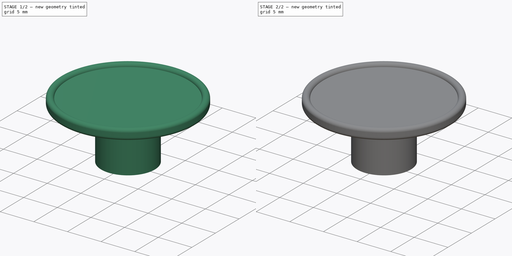
[diagram: build sequence overview — one tinted view per stage of 2, left to right]
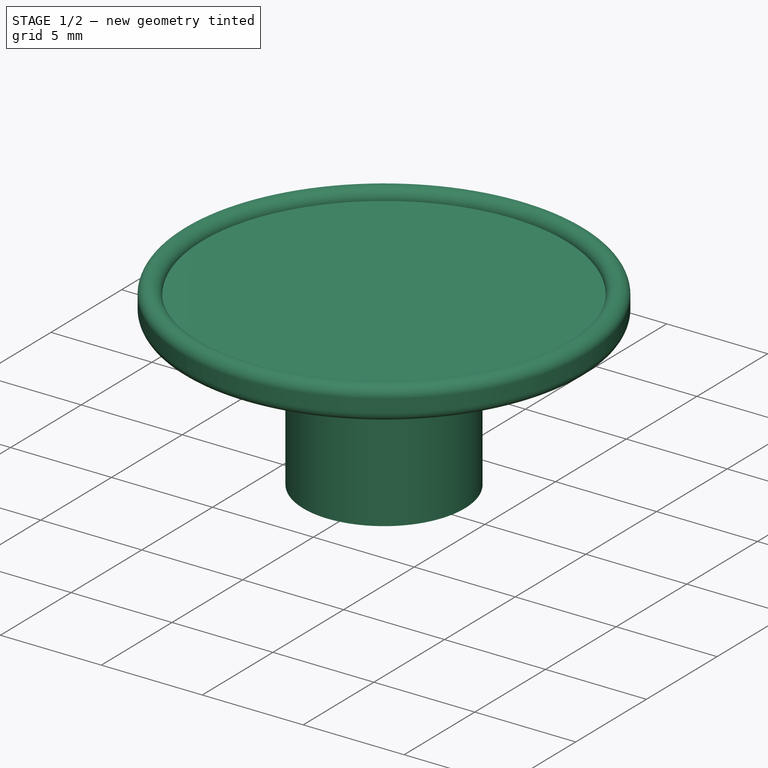
[diagram: stage 1 of 2 — iso view after this stage's code; geometry added in this stage tinted green]
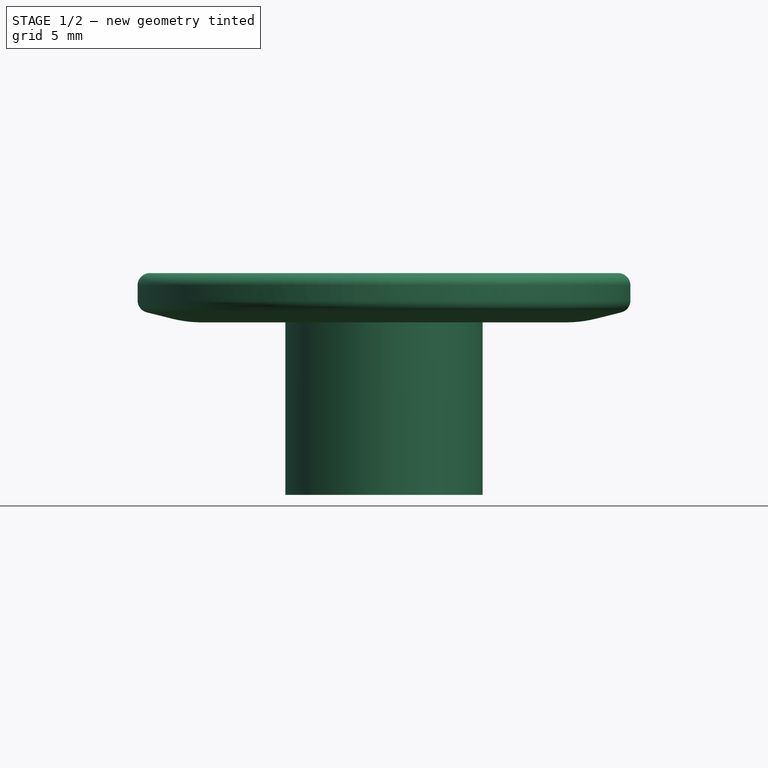
[diagram: stage 1 of 2 — front view after this stage's code; geometry added in this stage tinted green]
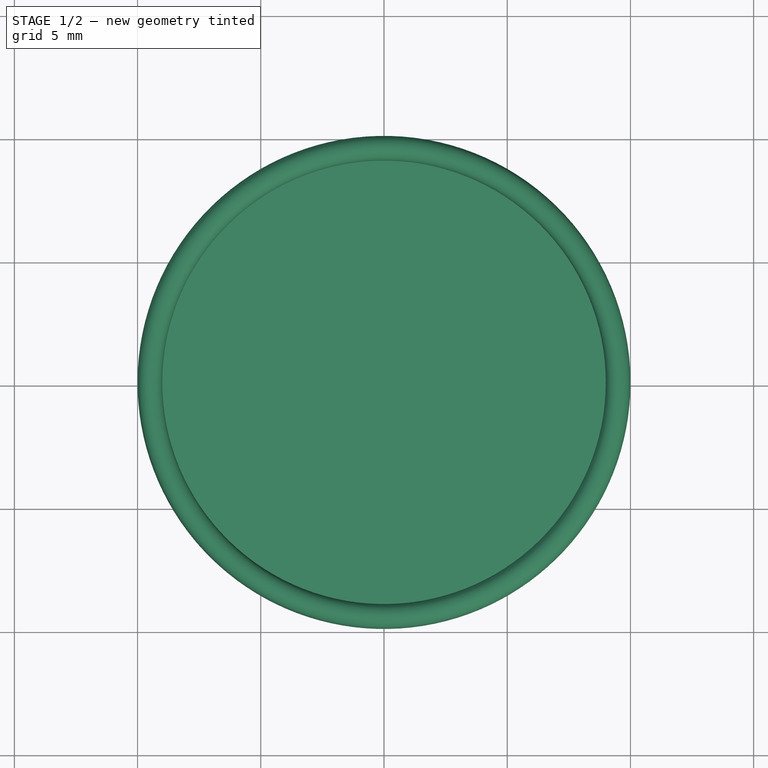
[diagram: stage 1 of 2 — top view after this stage's code; geometry added in this stage tinted green]
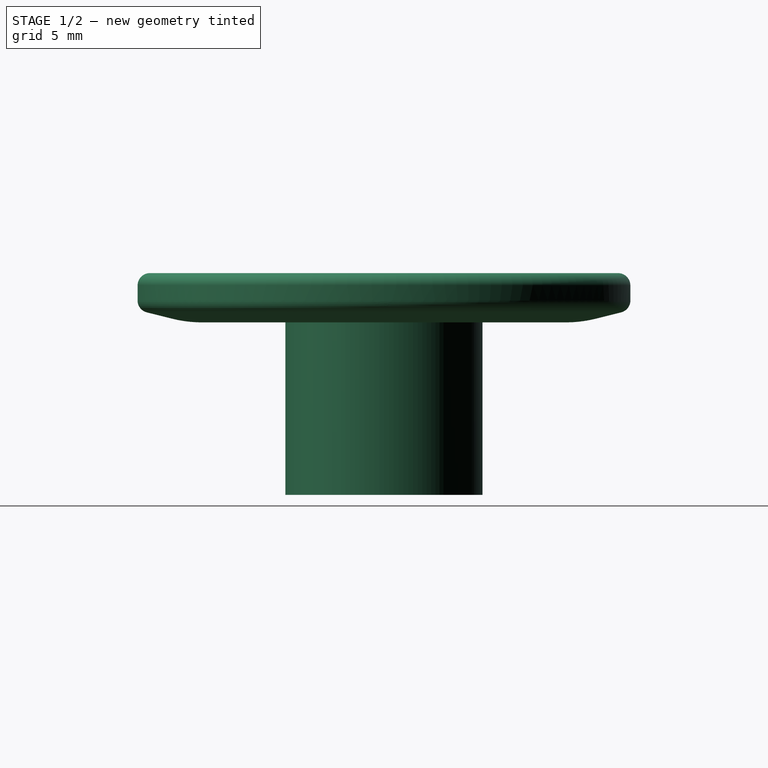
[diagram: stage 1 of 2 — right view after this stage's code; geometry added in this stage tinted green]
FCSTD DOCUMENT  (FreeCAD 0.16RUnknown)
Label: handle-flat
License: All rights reserved
LicenseURL: http://en.wikipedia.org/wiki/All_rights_reserved
objects: Sketcher::SketchObject×1, PartDesign::Revolution×1, Part::Cylinder×1, Part::Fillet×1, Part::Cut×1
note: 6 computed .brp shape members not serialized (recipe doc carries the construction recipe); baked Part::Feature solids carry a one-line shape summary decoded from their .brp

FEATURE [Sketcher::SketchObject] Sketch
  Placement = pos=(0,0,0) rot=(1,0,0;1.5708rad)
  sketch-geometry (10):
    g0: LineSegment StartX=0 StartY=0 StartZ=0 EndX=4 EndY=0 EndZ=0
    g1: LineSegment StartX=4 StartY=0 StartZ=0 EndX=4 EndY=7 EndZ=0
    g2: LineSegment StartX=10 StartY=7.5 StartZ=0 EndX=10 EndY=8.5 EndZ=0
    g3: LineSegment StartX=0 StartY=8.5 StartZ=0 EndX=0 EndY=0 EndZ=0
    g4: LineSegment StartX=0 StartY=8.5 StartZ=0 EndX=9 EndY=8.5 EndZ=0
    g5: ArcOfCircle CenterX=9.5 CenterY=8.5 CenterZ=0 NormalX=0 NormalY=0 NormalZ=1 Radius=0.5 StartAngle=6.28318 EndAngle=9.42473
    g6: LineSegment StartX=4 StartY=7 StartZ=0 EndX=8 EndY=7 EndZ=0
    g7: LineSegment StartX=8 StartY=7 StartZ=0 EndX=10 EndY=7.5 EndZ=0
    g8: LineSegment StartX=9 StartY=8.5 StartZ=0 EndX=9 EndY=8.50002 EndZ=0
    g9: LineSegment [constr] StartX=9.5 StartY=8.5 StartZ=0 EndX=9.5 EndY=9 EndZ=0
  constraints (30):
    c: Coincident(g-1,g0)
    c: Horizontal(g0)
    c: Coincident(g0,g1)
    c: Vertical(g1)
    c: Vertical(g2)
    c: Coincident(g3,g0)
    c: DistanceX(g0,g0) = 4  'Bearing Inner Radius'
    c: PointOnObject(g3,g-2)  'Constraint53'
    c: Coincident(g4,g3)  'Constraint49'
    c: Horizontal(g4)  'Constraint44'
    c: Coincident(g5,g2)  'Constraint19'
    c: DistanceX(g-1,g2) = 10  'Handle Radius'
    c: Coincident(g6,g1)  'Constraint24'
    c: Horizontal(g6)  'Constraint20'
    c: DistanceY(g0,g6) = 7  'Bearing Width'
    c: DistanceX(g-1,g6) = 8  'Step Radius'
    c: Coincident(g7,g6)  'Constraint32'
    c: Coincident(g7,g2)  'Constraint27'
    c: DistanceY(g6,g2) = 0.5  'Step Height'
    c: Coincident(g8,g5)
    c: Vertical(g8)
    c: Tangent(g5,g2)
    c: Coincident(g4,g8)
    c: Coincident(g9,g5)
    c: PointOnObject(g9,g5)
    c: Vertical(g9)
    c: DistanceY(g6,g9) = 2  'Handle Thickness'
    c: Tangent(g8,g5)
    c: DistanceY(g4,g9) = 0.5  'Border Height'
    c: DistanceX(g4,g2) = 1  'Border Width'
FEATURE [PartDesign::Revolution] Revolution
  Angle = 360
  Axis = (0,0,1)
  Base = (0,0,0)
  Placement = pos=(0,0,0) rot=(1,0,0;1.5708rad)
  ReferenceAxis = -> Sketch [V_Axis]
  Reversed = true
  Sketch = -> Sketch
FEATURE [Part::Fillet] Fillet
  Base = -> Revolution
  Edges = 2 edges: [Edge4 r=5,Edge5 r=0.5]
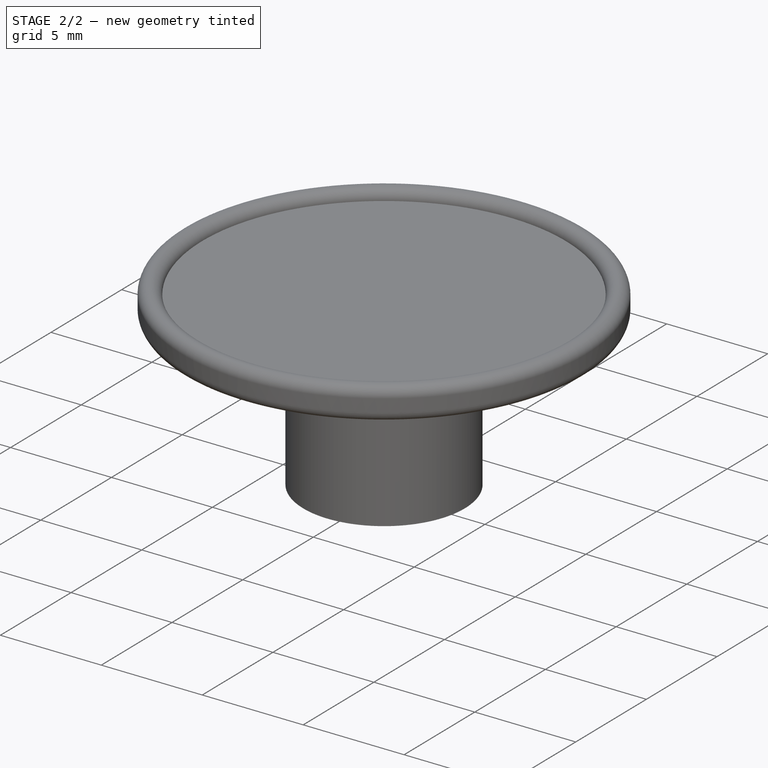
[diagram: stage 2 of 2 — iso view after this stage's code; geometry added in this stage tinted green]
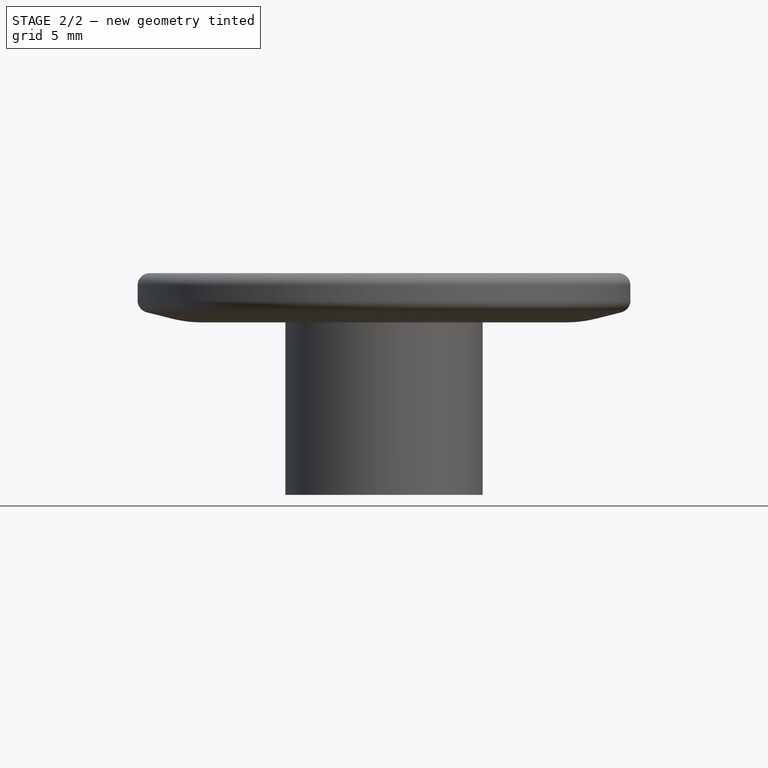
[diagram: stage 2 of 2 — front view after this stage's code; geometry added in this stage tinted green]
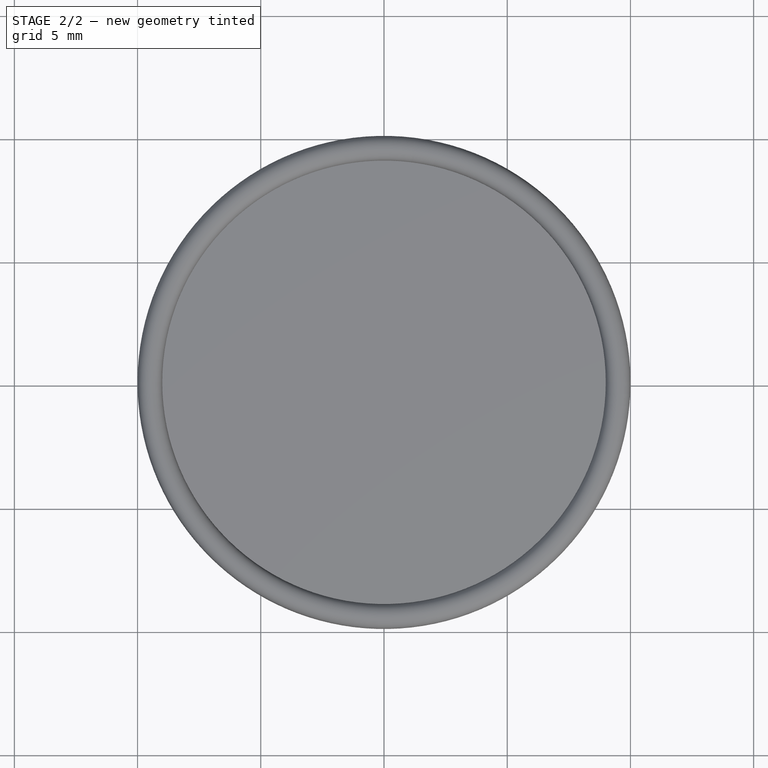
[diagram: stage 2 of 2 — top view after this stage's code; geometry added in this stage tinted green]
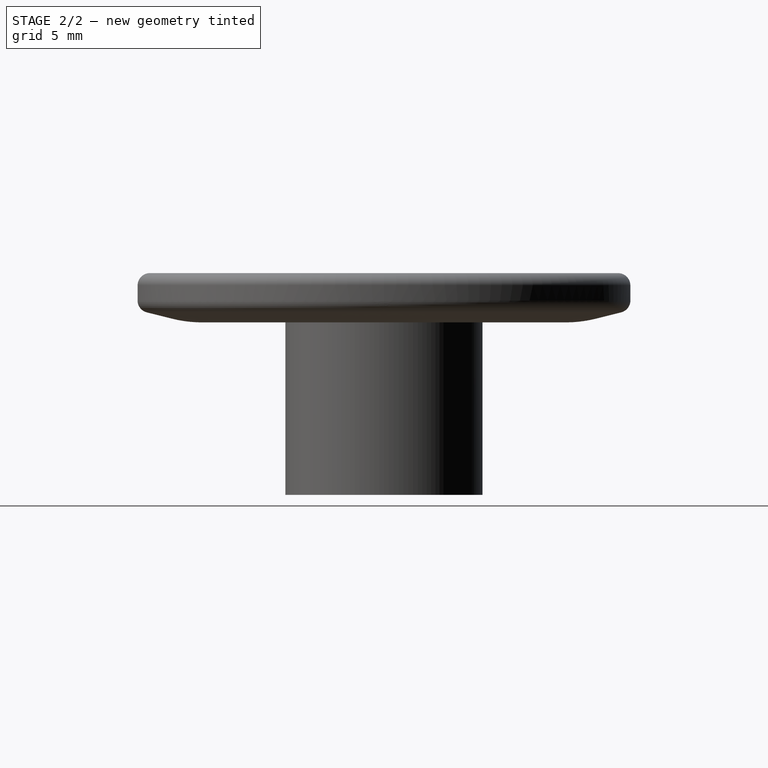
[diagram: stage 2 of 2 — right view after this stage's code; geometry added in this stage tinted green]
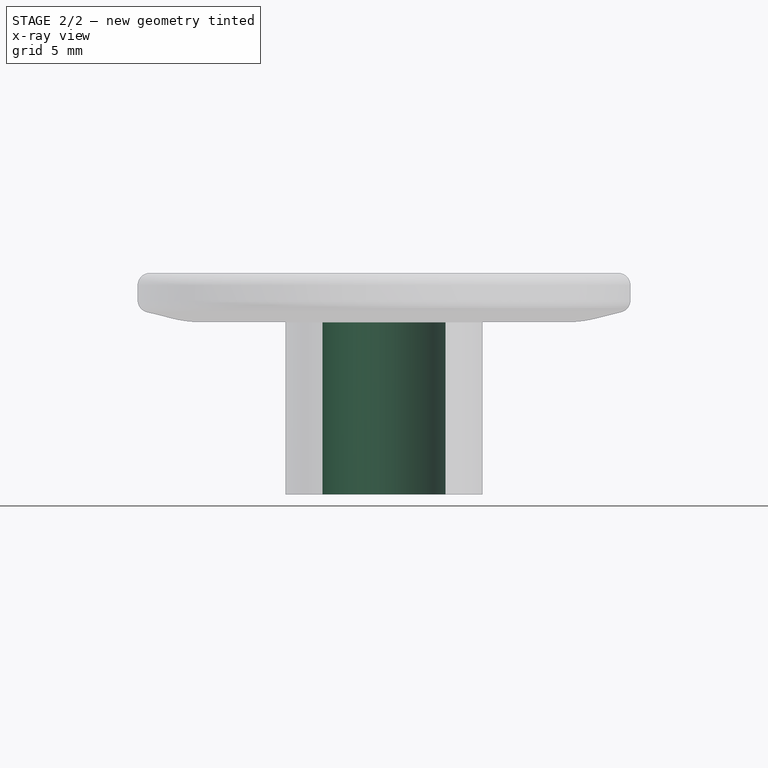
[diagram: stage 2 of 2 — x-ray composite at the front view; earlier geometry ghosted, this stage's added geometry solid]
FEATURE [Part::Cylinder] Cylinder  label="Pocket"
  Angle = 360
  Height = 7
  Radius = 2.5
FEATURE [Part::Cut] Cut  label="Handle"
  Base = -> Fillet
  Tool = -> Cylinder
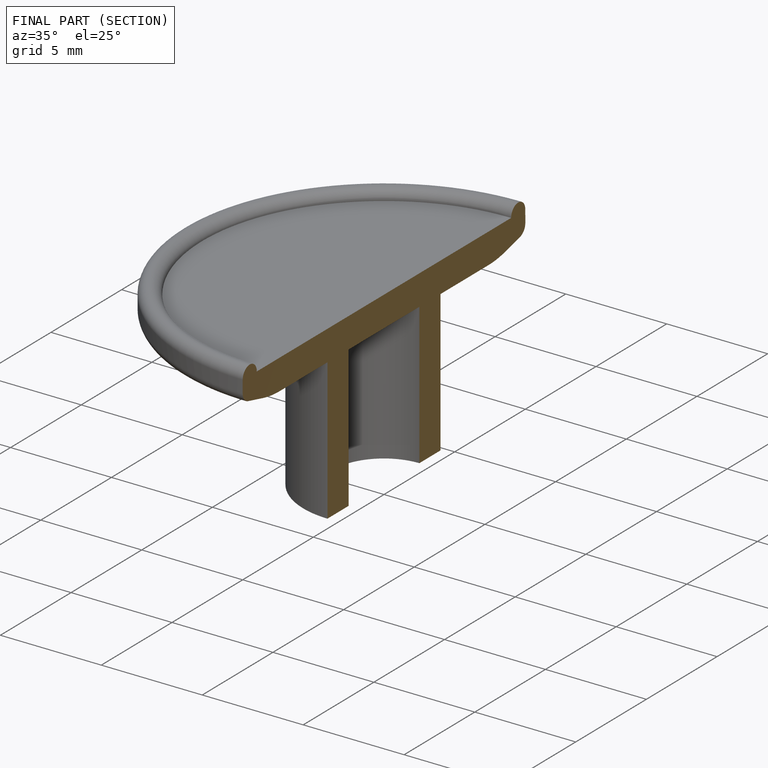
[diagram: finished part — half-section view (interior)]
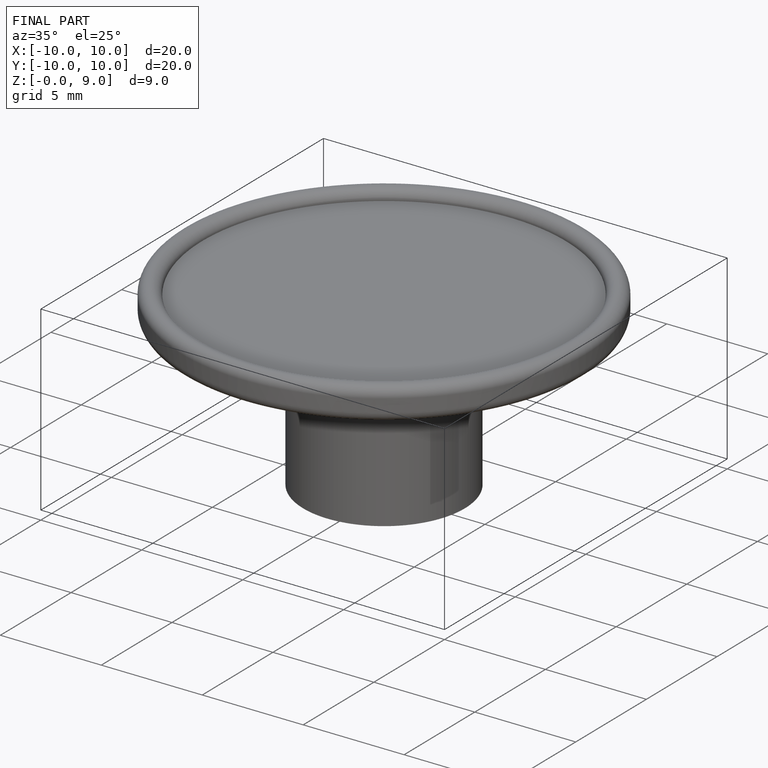
[diagram: finished part — iso view with bounding-box wireframe]
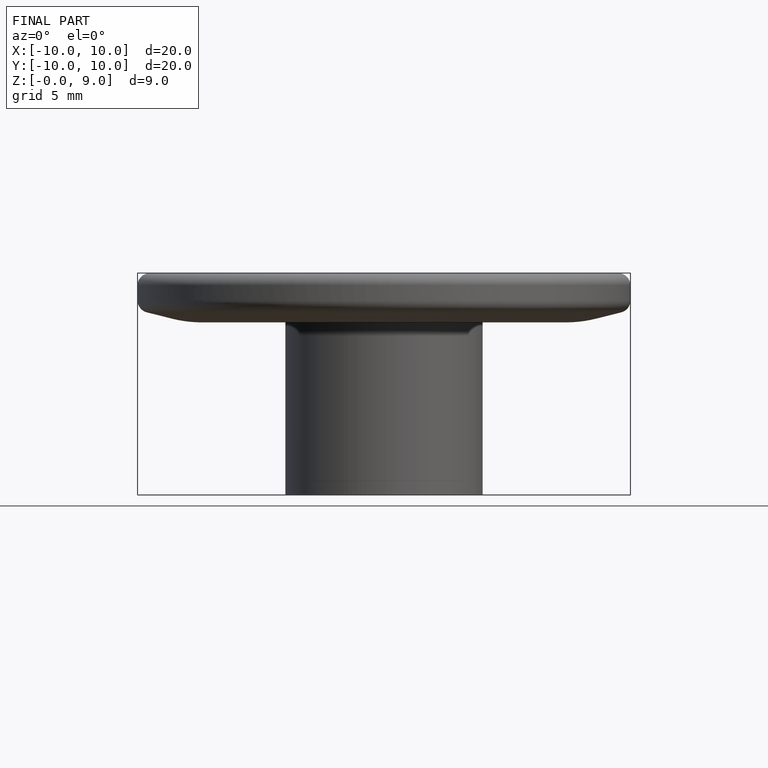
[diagram: finished part — front view with bounding-box wireframe]
